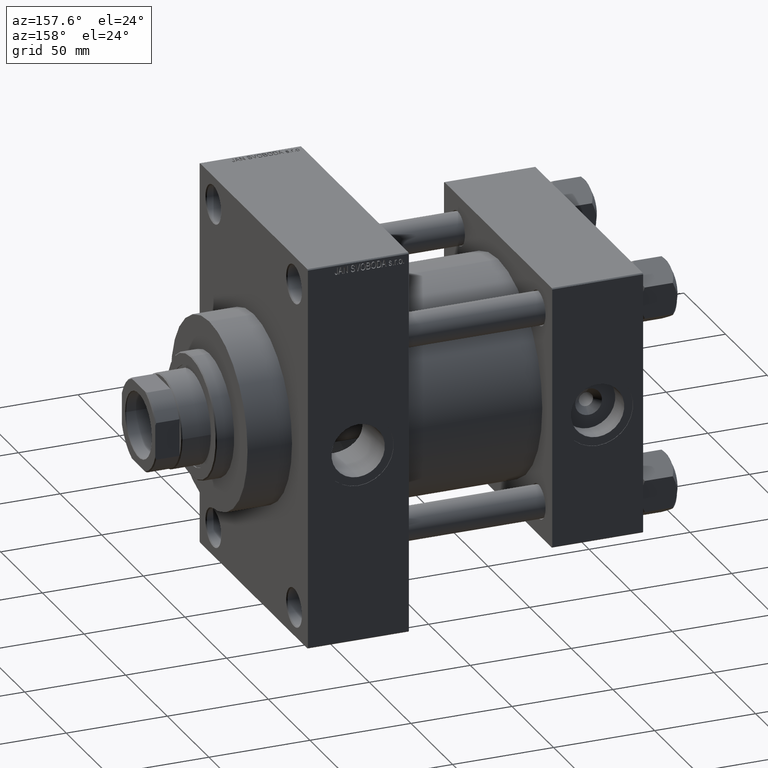
[diagram: clean part render]
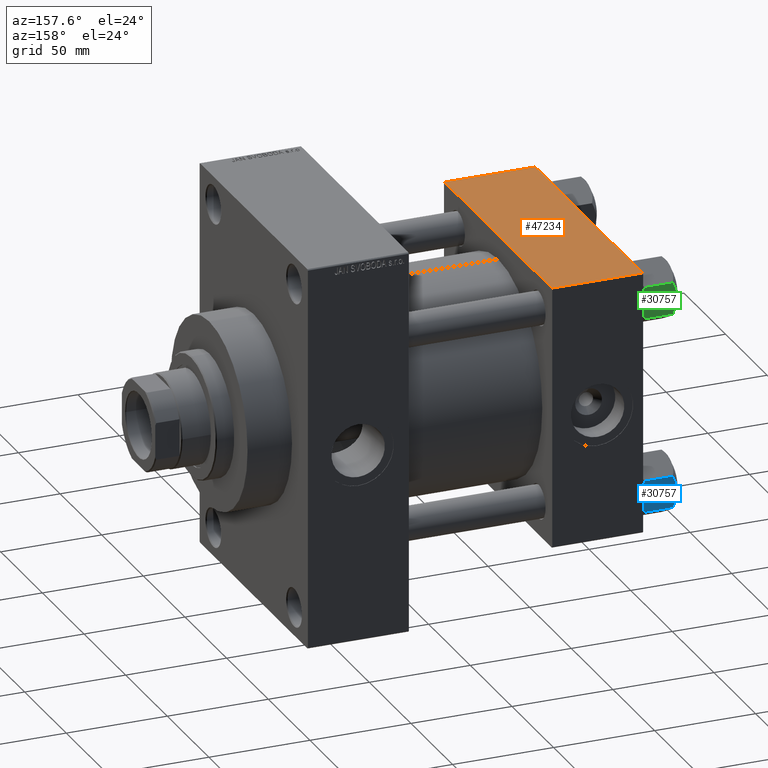
[diagram: same view with three faces highlighted in distinct colors, each labeled with its STEP entity id]
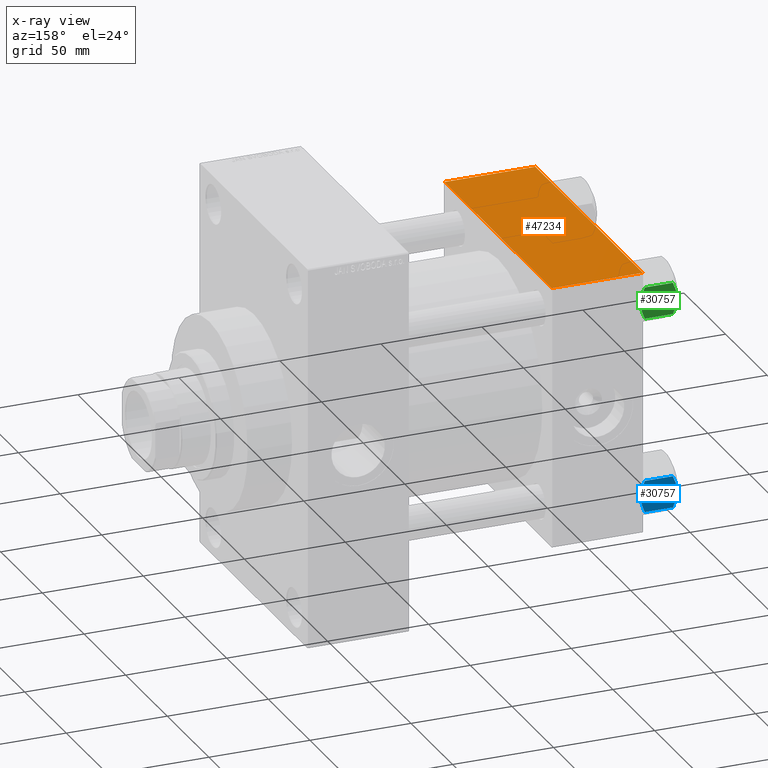
[diagram: x-ray of the same camera — body ghosted, the three highlighted faces saturated]
A machine part, auxiliary view with three faces highlighted in distinct colors.
The next image is the same camera in x-ray (body ghosted, the three faces saturated) — at least one of them is partly hidden behind the body in this view.
Their STEP definitions:

[orange] entity #47234 — the highlighted planar face has unit normal (0, 0, -1).
#588 = CARTESIAN_POINT ( 'NONE',  ( 0.000000000000000000, 65.00000000000000000, 65.00000000000001421 ) ) ;
#3921 = DIRECTION ( 'NONE',  ( 0.000000000000000000, 2.135044278125301096E-16, -1.000000000000000000 ) ) ;
#5358 = CARTESIAN_POINT ( 'NONE',  ( 45.00000000000000000, 64.49999999999997158, 65.00000000000001421 ) ) ;
#7292 = DIRECTION ( 'NONE',  ( 0.000000000000000000, 1.000000000000000000, 2.135044278125301096E-16 ) ) ;
#8332 = AXIS2_PLACEMENT_3D ( 'NONE', #17683, #3921, #7292 ) ;
#10085 = DIRECTION ( 'NONE',  ( -1.000000000000000000, 0.000000000000000000, 0.000000000000000000 ) ) ;
#13704 = CARTESIAN_POINT ( 'NONE',  ( 0.000000000000000000, 64.49999999999997158, 65.00000000000001421 ) ) ;
#14405 = LINE ( 'NONE', #13704, #31753 ) ;
#14411 = VERTEX_POINT ( 'NONE', #47492 ) ;
#14642 = EDGE_CURVE ( 'NONE', #18463, #23293, #14405, .T. ) ;
#17669 = VECTOR ( 'NONE', #30444, 1000.000000000000000 ) ;
#17683 = CARTESIAN_POINT ( 'NONE',  ( 45.00000000000000000, 65.00000000000000000, 65.00000000000001421 ) ) ;
#18463 = VERTEX_POINT ( 'NONE', #5358 ) ;
#18509 = EDGE_CURVE ( 'NONE', #18463, #24801, #22364, .T. ) ;
#18757 = DIRECTION ( 'NONE',  ( 0.000000000000000000, -1.000000000000000000, -2.135044278125300850E-16 ) ) ;
#21566 = LINE ( 'NONE', #588, #31323 ) ;
#22364 = LINE ( 'NONE', #29133, #22645 ) ;
#22645 = VECTOR ( 'NONE', #18757, 1000.000000000000000 ) ;
#23293 = VERTEX_POINT ( 'NONE', #31237 ) ;
#24801 = VERTEX_POINT ( 'NONE', #39789 ) ;
#24823 = ORIENTED_EDGE ( 'NONE', *, *, #35437, .T. ) ;
#25697 = ORIENTED_EDGE ( 'NONE', *, *, #14642, .T. ) ;
#29133 = CARTESIAN_POINT ( 'NONE',  ( 45.00000000000000000, 65.00000000000000000, 65.00000000000001421 ) ) ;
#30007 = DIRECTION ( 'NONE',  ( 0.000000000000000000, -1.000000000000000000, -2.135044278125300850E-16 ) ) ;
#30444 = DIRECTION ( 'NONE',  ( 1.000000000000000000, 0.000000000000000000, 0.000000000000000000 ) ) ;
#31177 = ORIENTED_EDGE ( 'NONE', *, *, #18509, .F. ) ;
#31237 = CARTESIAN_POINT ( 'NONE',  ( 0.000000000000000000, 64.49999999999997158, 65.00000000000001421 ) ) ;
#31323 = VECTOR ( 'NONE', #30007, 1000.000000000000000 ) ;
#31753 = VECTOR ( 'NONE', #10085, 1000.000000000000000 ) ;
#32614 = PLANE ( 'NONE',  #8332 ) ;
#35437 = EDGE_CURVE ( 'NONE', #14411, #24801, #41534, .T. ) ;
#36952 = FACE_OUTER_BOUND ( 'NONE', #46235, .T. ) ;
#37910 = CARTESIAN_POINT ( 'NONE',  ( 45.00000000000000000, -64.49999999999997158, 64.99999999999998579 ) ) ;
#38449 = ORIENTED_EDGE ( 'NONE', *, *, #44362, .T. ) ;
#39789 = CARTESIAN_POINT ( 'NONE',  ( 45.00000000000000000, -64.49999999999997158, 64.99999999999998579 ) ) ;
#41534 = LINE ( 'NONE', #37910, #17669 ) ;
#44362 = EDGE_CURVE ( 'NONE', #23293, #14411, #21566, .T. ) ;
#46235 = EDGE_LOOP ( 'NONE', ( #38449, #24823, #31177, #25697 ) ) ;
#47234 = ADVANCED_FACE ( 'NONE', ( #36952 ), #32614, .F. ) ;
#47492 = CARTESIAN_POINT ( 'NONE',  ( 0.000000000000000000, -64.49999999999997158, 64.99999999999998579 ) ) ;

[blue] entity #30757 — the highlighted planar face has unit normal (0, -1, -0).
#333 = PLANE ( 'NONE',  #27562 ) ;
#533 = ORIENTED_EDGE ( 'NONE', *, *, #27664, .F. ) ;
#612 = CARTESIAN_POINT ( 'NONE',  ( 1.663410456966173179, 13.52731680711293905, -17.90195050864300441 ) ) ;
#1725 = CARTESIAN_POINT ( 'NONE',  ( 4.557734399832410688, 13.52731680711294260, -17.26585298258849122 ) ) ;
#1936 = ORIENTED_EDGE ( 'NONE', *, *, #26518, .F. ) ;
#2870 = DIRECTION ( 'NONE',  ( -1.000000000000000000, 0.000000000000000000, 0.000000000000000000 ) ) ;
#3055 = CARTESIAN_POINT ( 'NONE',  ( -7.809999999999997833, 13.52731680711293905, -1.999999999999998224 ) ) ;
#3080 = CARTESIAN_POINT ( 'NONE',  ( -7.622943475354646559, 13.52731680711293905, -2.000000000000000000 ) ) ;
#4214 = CARTESIAN_POINT ( 'NONE',  ( 6.422751913021825132, 13.52731680711294260, -16.56349088907410660 ) ) ;
#4659 = VERTEX_POINT ( 'NONE', #11402 ) ;
#4989 = CARTESIAN_POINT ( 'NONE',  ( 7.810000000000001386, 13.52731680711293905, -18.00000000000000000 ) ) ;
#5309 = DIRECTION ( 'NONE',  ( 1.000000000000000000, 0.000000000000000000, 0.000000000000000000 ) ) ;
#6089 = ORIENTED_EDGE ( 'NONE', *, *, #39892, .F. ) ;
#6622 = CARTESIAN_POINT ( 'NONE',  ( 0.000000000000000000, 13.52731680711293905, 0.000000000000000000 ) ) ;
#6892 = ORIENTED_EDGE ( 'NONE', *, *, #12689, .F. ) ;
#7987 = CARTESIAN_POINT ( 'NONE',  ( -4.553769687922306630, 13.52731680711293905, -17.26727080048548046 ) ) ;
#8066 = VECTOR ( 'NONE', #5309, 1000.000000000000000 ) ;
#8847 = DIRECTION ( 'NONE',  ( 1.000000000000000000, 0.000000000000000000, 0.000000000000000000 ) ) ;
#9332 = DIRECTION ( 'NONE',  ( -0.000000000000000000, -0.000000000000000000, 1.000000000000000000 ) ) ;
#9523 = EDGE_CURVE ( 'NONE', #39921, #37465, #16804, .T. ) ;
#10079 = CARTESIAN_POINT ( 'NONE',  ( -1.333889873825133243, 13.52731680711293727, -0.06156641003439514842 ) ) ;
#11402 = CARTESIAN_POINT ( 'NONE',  ( -7.622943475354646559, 13.52731680711293905, -2.000000000000000000 ) ) ;
#11681 = CARTESIAN_POINT ( 'NONE',  ( 4.553769687922306630, 13.52731680711293905, -0.7327291995145164272 ) ) ;
#12126 = CARTESIAN_POINT ( 'NONE',  ( 0.000000000000000000, 13.52731680711293905, -18.00000000000000000 ) ) ;
#12689 = EDGE_CURVE ( 'NONE', #13237, #32753, #14627, .T. ) ;
#13237 = VERTEX_POINT ( 'NONE', #21397 ) ;
#13698 = CARTESIAN_POINT ( 'NONE',  ( -0.6693083573771212436, 13.52731680711293905, -0.01249333081108270314 ) ) ;
#14171 = VECTOR ( 'NONE', #40048, 1000.000000000000000 ) ;
#14627 = B_SPLINE_CURVE_WITH_KNOTS ( 'NONE', 3,
 ( #19564, #33551, #15223, #27270, #7987, #41742, #15462, #37409 ),
 .UNSPECIFIED., .F., .F.,
 ( 4, 2, 2, 4 ),
 ( 0.01980594295952728401, 0.02179054093496182731, 0.02377513891039636715, 0.02774433486126545029 ),
 .UNSPECIFIED. ) ;
#15038 = CARTESIAN_POINT ( 'NONE',  ( -7.809999999999997833, 13.52731680711293905, -18.00000000000000000 ) ) ;
#15223 = CARTESIAN_POINT ( 'NONE',  ( -6.427364677720471597, 13.52731680711293905, -16.56149306284486400 ) ) ;
#15429 = VERTEX_POINT ( 'NONE', #6622 ) ;
#15462 = CARTESIAN_POINT ( 'NONE',  ( -1.335584685993417287, 13.52731680711294082, -18.00000000000000000 ) ) ;
#16235 = B_SPLINE_CURVE_WITH_KNOTS ( 'NONE', 3,
 ( #18696, #45844, #33397, #30028, #612, #37256, #26411, #1725, #41116, #4214, #22772, #27539 ),
 .UNSPECIFIED., .F., .F.,
 ( 4, 2, 2, 2, 2, 4 ),
 ( 0.02774433486126545029, 0.02873404020403548878, 0.02972374554680552727, 0.03170315623234559732, 0.03368256691788567431, 0.03566197760342575129 ),
 .UNSPECIFIED. ) ;
#16537 = EDGE_CURVE ( 'NONE', #46916, #15429, #35623, .T. ) ;
#16643 = CARTESIAN_POINT ( 'NONE',  ( -7.809999999999997833, 13.52731680711293905, -16.00000000000000000 ) ) ;
#16804 = LINE ( 'NONE', #4989, #20170 ) ;
#18028 = ORIENTED_EDGE ( 'NONE', *, *, #39458, .F. ) ;
#18662 = FACE_OUTER_BOUND ( 'NONE', #47150, .T. ) ;
#18678 = CARTESIAN_POINT ( 'NONE',  ( 1.335584685993417065, 13.52731680711294260, -9.486769009248166263E-17 ) ) ;
#18696 = CARTESIAN_POINT ( 'NONE',  ( 0.000000000000000000, 13.52731680711293905, -18.00000000000000000 ) ) ;
#18913 = CARTESIAN_POINT ( 'NONE',  ( 0.000000000000000000, 13.52731680711293905, 0.000000000000000000 ) ) ;
#19564 = CARTESIAN_POINT ( 'NONE',  ( -7.622943475354646559, 13.52731680711293905, -16.00000000000000000 ) ) ;
#19712 = EDGE_CURVE ( 'NONE', #32838, #13237, #27969, .T. ) ;
#19714 = CARTESIAN_POINT ( 'NONE',  ( -7.809999999999997833, 13.52731680711293905, -16.00000000000000000 ) ) ;
#20170 = VECTOR ( 'NONE', #9332, 1000.000000000000000 ) ;
#21237 = CARTESIAN_POINT ( 'NONE',  ( -7.809999999999997833, 13.52731680711293905, -1.999999999999998224 ) ) ;
#21318 = B_SPLINE_CURVE_WITH_KNOTS ( 'NONE', 3,
 ( #32018, #46727, #13698, #10079, #38313, #34696, #47675, #39972, #43826, #25502, #40202, #3080 ),
 .UNSPECIFIED., .F., .F.,
 ( 4, 2, 2, 2, 2, 4 ),
 ( 0.02774433486126545376, 0.02873404020403549225, 0.02972374554680553074, 0.03170315623234560426, 0.03368256691788568125, 0.03566197760342575823 ),
 .UNSPECIFIED. ) ;
#21397 = CARTESIAN_POINT ( 'NONE',  ( -7.622943475354646559, 13.52731680711293905, -16.00000000000000000 ) ) ;
#22542 = VERTEX_POINT ( 'NONE', #39177 ) ;
#22772 = CARTESIAN_POINT ( 'NONE',  ( 7.030203932307582448, 13.52731680711294082, -16.29099812210859710 ) ) ;
#23363 = VECTOR ( 'NONE', #8847, 1000.000000000000000 ) ;
#23432 = VECTOR ( 'NONE', #2870, 1000.000000000000000 ) ;
#24255 = CARTESIAN_POINT ( 'NONE',  ( -7.809999999999997833, 13.52731680711293905, -18.00000000000000000 ) ) ;
#25208 = CARTESIAN_POINT ( 'NONE',  ( 7.622943475354646559, 13.52731680711293905, -2.000000000000000000 ) ) ;
#25502 = CARTESIAN_POINT ( 'NONE',  ( -6.422751913021825132, 13.52731680711294260, -1.436509110925897614 ) ) ;
#25576 = LINE ( 'NONE', #21237, #14171 ) ;
#25808 = LINE ( 'NONE', #19714, #23363 ) ;
#26411 = CARTESIAN_POINT ( 'NONE',  ( 3.287826776903149728, 13.52731680711294082, -17.61954155462466431 ) ) ;
#26518 = EDGE_CURVE ( 'NONE', #32753, #22542, #16235, .T. ) ;
#26610 = ORIENTED_EDGE ( 'NONE', *, *, #16537, .F. ) ;
#26612 = ORIENTED_EDGE ( 'NONE', *, *, #37464, .F. ) ;
#27074 = CARTESIAN_POINT ( 'NONE',  ( -7.809999999999997833, 13.52731680711293905, -16.00000000000000000 ) ) ;
#27270 = CARTESIAN_POINT ( 'NONE',  ( -5.189513245496329752, 13.52731680711293727, -17.04988915682674033 ) ) ;
#27539 = CARTESIAN_POINT ( 'NONE',  ( 7.622943475354646559, 13.52731680711293905, -16.00000000000000000 ) ) ;
#27562 = AXIS2_PLACEMENT_3D ( 'NONE', #15038, #29755, #44456 ) ;
#27664 = EDGE_CURVE ( 'NONE', #15429, #4659, #21318, .T. ) ;
#27969 = LINE ( 'NONE', #16643, #8066 ) ;
#29048 = CARTESIAN_POINT ( 'NONE',  ( 2.638177715023107162, 13.52731680711293905, -0.2001540676698846388 ) ) ;
#29755 = DIRECTION ( 'NONE',  ( 0.000000000000000000, -1.000000000000000000, 0.000000000000000000 ) ) ;
#30028 = CARTESIAN_POINT ( 'NONE',  ( 1.333889873825132355, 13.52731680711293727, -17.93843358996560511 ) ) ;
#30757 = ADVANCED_FACE ( 'NONE', ( #18662 ), #333, .F. ) ;
#32018 = CARTESIAN_POINT ( 'NONE',  ( 0.000000000000000000, 13.52731680711293905, 0.000000000000000000 ) ) ;
#32208 = LINE ( 'NONE', #24255, #36150 ) ;
#32292 = LINE ( 'NONE', #47468, #23432 ) ;
#32753 = VERTEX_POINT ( 'NONE', #12126 ) ;
#32838 = VERTEX_POINT ( 'NONE', #27074 ) ;
#33397 = CARTESIAN_POINT ( 'NONE',  ( 0.6693083573771192452, 13.52731680711293905, -17.98750666918892094 ) ) ;
#33551 = CARTESIAN_POINT ( 'NONE',  ( -7.030888348548061551, 13.52731680711293905, -16.29066211644969897 ) ) ;
#34696 = CARTESIAN_POINT ( 'NONE',  ( -2.644243758052991389, 13.52731680711294260, -0.2408281198023992098 ) ) ;
#34893 = EDGE_CURVE ( 'NONE', #32838, #41689, #32208, .T. ) ;
#35623 = B_SPLINE_CURVE_WITH_KNOTS ( 'NONE', 3,
 ( #43759, #44708, #40623, #47364, #11681, #29048, #18678, #18913 ),
 .UNSPECIFIED., .F., .F.,
 ( 4, 2, 2, 4 ),
 ( 0.01980594295952728401, 0.02179054093496182731, 0.02377513891039636715, 0.02774433486126545376 ),
 .UNSPECIFIED. ) ;
#36150 = VECTOR ( 'NONE', #38736, 1000.000000000000000 ) ;
#37256 = CARTESIAN_POINT ( 'NONE',  ( 2.644243758052989612, 13.52731680711294260, -17.75917188019759863 ) ) ;
#37409 = CARTESIAN_POINT ( 'NONE',  ( 0.000000000000000000, 13.52731680711293905, -18.00000000000000000 ) ) ;
#37464 = EDGE_CURVE ( 'NONE', #22542, #39921, #25808, .T. ) ;
#37465 = VERTEX_POINT ( 'NONE', #40519 ) ;
#37626 = CARTESIAN_POINT ( 'NONE',  ( 7.810000000000001386, 13.52731680711293905, -16.00000000000000000 ) ) ;
#38313 = CARTESIAN_POINT ( 'NONE',  ( -1.663410456966174511, 13.52731680711293905, -0.09804949135699092544 ) ) ;
#38446 = ORIENTED_EDGE ( 'NONE', *, *, #34893, .T. ) ;
#38736 = DIRECTION ( 'NONE',  ( -0.000000000000000000, -0.000000000000000000, 1.000000000000000000 ) ) ;
#39177 = CARTESIAN_POINT ( 'NONE',  ( 7.622943475354646559, 13.52731680711293905, -16.00000000000000000 ) ) ;
#39458 = EDGE_CURVE ( 'NONE', #37465, #46916, #32292, .T. ) ;
#39892 = EDGE_CURVE ( 'NONE', #4659, #41689, #25576, .T. ) ;
#39921 = VERTEX_POINT ( 'NONE', #37626 ) ;
#39972 = CARTESIAN_POINT ( 'NONE',  ( -4.557734399832415129, 13.52731680711294260, -0.7341470174115148906 ) ) ;
#40048 = DIRECTION ( 'NONE',  ( -1.000000000000000000, 0.000000000000000000, 0.000000000000000000 ) ) ;
#40202 = CARTESIAN_POINT ( 'NONE',  ( -7.030203932307585113, 13.52731680711294082, -1.709001877891394239 ) ) ;
#40519 = CARTESIAN_POINT ( 'NONE',  ( 7.810000000000001386, 13.52731680711293905, -1.999999999999998224 ) ) ;
#40623 = CARTESIAN_POINT ( 'NONE',  ( 6.427364677720476926, 13.52731680711294082, -1.438506937155140664 ) ) ;
#41116 = CARTESIAN_POINT ( 'NONE',  ( 5.184073258379402027, 13.52731680711294082, -17.05185620934991775 ) ) ;
#41689 = VERTEX_POINT ( 'NONE', #3055 ) ;
#41742 = CARTESIAN_POINT ( 'NONE',  ( -2.638177715023110714, 13.52731680711294260, -17.79984593233011481 ) ) ;
#43359 = ORIENTED_EDGE ( 'NONE', *, *, #9523, .F. ) ;
#43759 = CARTESIAN_POINT ( 'NONE',  ( 7.622943475354646559, 13.52731680711293905, -2.000000000000000000 ) ) ;
#43826 = CARTESIAN_POINT ( 'NONE',  ( -5.184073258379404692, 13.52731680711294082, -0.9481437906500841395 ) ) ;
#44456 = DIRECTION ( 'NONE',  ( 0.000000000000000000, -0.000000000000000000, -1.000000000000000000 ) ) ;
#44708 = CARTESIAN_POINT ( 'NONE',  ( 7.030888348548067768, 13.52731680711294260, -1.709337883550299253 ) ) ;
#45844 = CARTESIAN_POINT ( 'NONE',  ( 0.3330234424833813378, 13.52731680711293905, -18.00000000000000355 ) ) ;
#46727 = CARTESIAN_POINT ( 'NONE',  ( -0.3330234424833830031, 13.52731680711293905, 5.717472393966525748E-18 ) ) ;
#46916 = VERTEX_POINT ( 'NONE', #25208 ) ;
#47150 = EDGE_LOOP ( 'NONE', ( #47592, #38446, #6089, #533, #26610, #18028, #43359, #26612, #1936, #6892 ) ) ;
#47364 = CARTESIAN_POINT ( 'NONE',  ( 5.189513245496330640, 13.52731680711293727, -0.9501108431732594450 ) ) ;
#47468 = CARTESIAN_POINT ( 'NONE',  ( -7.809999999999997833, 13.52731680711293905, -1.999999999999998224 ) ) ;
#47592 = ORIENTED_EDGE ( 'NONE', *, *, #19712, .F. ) ;
#47675 = CARTESIAN_POINT ( 'NONE',  ( -3.287826776903153281, 13.52731680711294082, -0.3804584453753372952 ) ) ;

[green] entity #30757 — the highlighted planar face has unit normal (0, -1, 0).
#333 = PLANE ( 'NONE',  #27562 ) ;
#533 = ORIENTED_EDGE ( 'NONE', *, *, #27664, .F. ) ;
#612 = CARTESIAN_POINT ( 'NONE',  ( 1.663410456966173179, 13.52731680711293905, -17.90195050864300441 ) ) ;
#1725 = CARTESIAN_POINT ( 'NONE',  ( 4.557734399832410688, 13.52731680711294260, -17.26585298258849122 ) ) ;
#1936 = ORIENTED_EDGE ( 'NONE', *, *, #26518, .F. ) ;
#2870 = DIRECTION ( 'NONE',  ( -1.000000000000000000, 0.000000000000000000, 0.000000000000000000 ) ) ;
#3055 = CARTESIAN_POINT ( 'NONE',  ( -7.809999999999997833, 13.52731680711293905, -1.999999999999998224 ) ) ;
#3080 = CARTESIAN_POINT ( 'NONE',  ( -7.622943475354646559, 13.52731680711293905, -2.000000000000000000 ) ) ;
#4214 = CARTESIAN_POINT ( 'NONE',  ( 6.422751913021825132, 13.52731680711294260, -16.56349088907410660 ) ) ;
#4659 = VERTEX_POINT ( 'NONE', #11402 ) ;
#4989 = CARTESIAN_POINT ( 'NONE',  ( 7.810000000000001386, 13.52731680711293905, -18.00000000000000000 ) ) ;
#5309 = DIRECTION ( 'NONE',  ( 1.000000000000000000, 0.000000000000000000, 0.000000000000000000 ) ) ;
#6089 = ORIENTED_EDGE ( 'NONE', *, *, #39892, .F. ) ;
#6622 = CARTESIAN_POINT ( 'NONE',  ( 0.000000000000000000, 13.52731680711293905, 0.000000000000000000 ) ) ;
#6892 = ORIENTED_EDGE ( 'NONE', *, *, #12689, .F. ) ;
#7987 = CARTESIAN_POINT ( 'NONE',  ( -4.553769687922306630, 13.52731680711293905, -17.26727080048548046 ) ) ;
#8066 = VECTOR ( 'NONE', #5309, 1000.000000000000000 ) ;
#8847 = DIRECTION ( 'NONE',  ( 1.000000000000000000, 0.000000000000000000, 0.000000000000000000 ) ) ;
#9332 = DIRECTION ( 'NONE',  ( -0.000000000000000000, -0.000000000000000000, 1.000000000000000000 ) ) ;
#9523 = EDGE_CURVE ( 'NONE', #39921, #37465, #16804, .T. ) ;
#10079 = CARTESIAN_POINT ( 'NONE',  ( -1.333889873825133243, 13.52731680711293727, -0.06156641003439514842 ) ) ;
#11402 = CARTESIAN_POINT ( 'NONE',  ( -7.622943475354646559, 13.52731680711293905, -2.000000000000000000 ) ) ;
#11681 = CARTESIAN_POINT ( 'NONE',  ( 4.553769687922306630, 13.52731680711293905, -0.7327291995145164272 ) ) ;
#12126 = CARTESIAN_POINT ( 'NONE',  ( 0.000000000000000000, 13.52731680711293905, -18.00000000000000000 ) ) ;
#12689 = EDGE_CURVE ( 'NONE', #13237, #32753, #14627, .T. ) ;
#13237 = VERTEX_POINT ( 'NONE', #21397 ) ;
#13698 = CARTESIAN_POINT ( 'NONE',  ( -0.6693083573771212436, 13.52731680711293905, -0.01249333081108270314 ) ) ;
#14171 = VECTOR ( 'NONE', #40048, 1000.000000000000000 ) ;
#14627 = B_SPLINE_CURVE_WITH_KNOTS ( 'NONE', 3,
 ( #19564, #33551, #15223, #27270, #7987, #41742, #15462, #37409 ),
 .UNSPECIFIED., .F., .F.,
 ( 4, 2, 2, 4 ),
 ( 0.01980594295952728401, 0.02179054093496182731, 0.02377513891039636715, 0.02774433486126545029 ),
 .UNSPECIFIED. ) ;
#15038 = CARTESIAN_POINT ( 'NONE',  ( -7.809999999999997833, 13.52731680711293905, -18.00000000000000000 ) ) ;
#15223 = CARTESIAN_POINT ( 'NONE',  ( -6.427364677720471597, 13.52731680711293905, -16.56149306284486400 ) ) ;
#15429 = VERTEX_POINT ( 'NONE', #6622 ) ;
#15462 = CARTESIAN_POINT ( 'NONE',  ( -1.335584685993417287, 13.52731680711294082, -18.00000000000000000 ) ) ;
#16235 = B_SPLINE_CURVE_WITH_KNOTS ( 'NONE', 3,
 ( #18696, #45844, #33397, #30028, #612, #37256, #26411, #1725, #41116, #4214, #22772, #27539 ),
 .UNSPECIFIED., .F., .F.,
 ( 4, 2, 2, 2, 2, 4 ),
 ( 0.02774433486126545029, 0.02873404020403548878, 0.02972374554680552727, 0.03170315623234559732, 0.03368256691788567431, 0.03566197760342575129 ),
 .UNSPECIFIED. ) ;
#16537 = EDGE_CURVE ( 'NONE', #46916, #15429, #35623, .T. ) ;
#16643 = CARTESIAN_POINT ( 'NONE',  ( -7.809999999999997833, 13.52731680711293905, -16.00000000000000000 ) ) ;
#16804 = LINE ( 'NONE', #4989, #20170 ) ;
#18028 = ORIENTED_EDGE ( 'NONE', *, *, #39458, .F. ) ;
#18662 = FACE_OUTER_BOUND ( 'NONE', #47150, .T. ) ;
#18678 = CARTESIAN_POINT ( 'NONE',  ( 1.335584685993417065, 13.52731680711294260, -9.486769009248166263E-17 ) ) ;
#18696 = CARTESIAN_POINT ( 'NONE',  ( 0.000000000000000000, 13.52731680711293905, -18.00000000000000000 ) ) ;
#18913 = CARTESIAN_POINT ( 'NONE',  ( 0.000000000000000000, 13.52731680711293905, 0.000000000000000000 ) ) ;
#19564 = CARTESIAN_POINT ( 'NONE',  ( -7.622943475354646559, 13.52731680711293905, -16.00000000000000000 ) ) ;
#19712 = EDGE_CURVE ( 'NONE', #32838, #13237, #27969, .T. ) ;
#19714 = CARTESIAN_POINT ( 'NONE',  ( -7.809999999999997833, 13.52731680711293905, -16.00000000000000000 ) ) ;
#20170 = VECTOR ( 'NONE', #9332, 1000.000000000000000 ) ;
#21237 = CARTESIAN_POINT ( 'NONE',  ( -7.809999999999997833, 13.52731680711293905, -1.999999999999998224 ) ) ;
#21318 = B_SPLINE_CURVE_WITH_KNOTS ( 'NONE', 3,
 ( #32018, #46727, #13698, #10079, #38313, #34696, #47675, #39972, #43826, #25502, #40202, #3080 ),
 .UNSPECIFIED., .F., .F.,
 ( 4, 2, 2, 2, 2, 4 ),
 ( 0.02774433486126545376, 0.02873404020403549225, 0.02972374554680553074, 0.03170315623234560426, 0.03368256691788568125, 0.03566197760342575823 ),
 .UNSPECIFIED. ) ;
#21397 = CARTESIAN_POINT ( 'NONE',  ( -7.622943475354646559, 13.52731680711293905, -16.00000000000000000 ) ) ;
#22542 = VERTEX_POINT ( 'NONE', #39177 ) ;
#22772 = CARTESIAN_POINT ( 'NONE',  ( 7.030203932307582448, 13.52731680711294082, -16.29099812210859710 ) ) ;
#23363 = VECTOR ( 'NONE', #8847, 1000.000000000000000 ) ;
#23432 = VECTOR ( 'NONE', #2870, 1000.000000000000000 ) ;
#24255 = CARTESIAN_POINT ( 'NONE',  ( -7.809999999999997833, 13.52731680711293905, -18.00000000000000000 ) ) ;
#25208 = CARTESIAN_POINT ( 'NONE',  ( 7.622943475354646559, 13.52731680711293905, -2.000000000000000000 ) ) ;
#25502 = CARTESIAN_POINT ( 'NONE',  ( -6.422751913021825132, 13.52731680711294260, -1.436509110925897614 ) ) ;
#25576 = LINE ( 'NONE', #21237, #14171 ) ;
#25808 = LINE ( 'NONE', #19714, #23363 ) ;
#26411 = CARTESIAN_POINT ( 'NONE',  ( 3.287826776903149728, 13.52731680711294082, -17.61954155462466431 ) ) ;
#26518 = EDGE_CURVE ( 'NONE', #32753, #22542, #16235, .T. ) ;
#26610 = ORIENTED_EDGE ( 'NONE', *, *, #16537, .F. ) ;
#26612 = ORIENTED_EDGE ( 'NONE', *, *, #37464, .F. ) ;
#27074 = CARTESIAN_POINT ( 'NONE',  ( -7.809999999999997833, 13.52731680711293905, -16.00000000000000000 ) ) ;
#27270 = CARTESIAN_POINT ( 'NONE',  ( -5.189513245496329752, 13.52731680711293727, -17.04988915682674033 ) ) ;
#27539 = CARTESIAN_POINT ( 'NONE',  ( 7.622943475354646559, 13.52731680711293905, -16.00000000000000000 ) ) ;
#27562 = AXIS2_PLACEMENT_3D ( 'NONE', #15038, #29755, #44456 ) ;
#27664 = EDGE_CURVE ( 'NONE', #15429, #4659, #21318, .T. ) ;
#27969 = LINE ( 'NONE', #16643, #8066 ) ;
#29048 = CARTESIAN_POINT ( 'NONE',  ( 2.638177715023107162, 13.52731680711293905, -0.2001540676698846388 ) ) ;
#29755 = DIRECTION ( 'NONE',  ( 0.000000000000000000, -1.000000000000000000, 0.000000000000000000 ) ) ;
#30028 = CARTESIAN_POINT ( 'NONE',  ( 1.333889873825132355, 13.52731680711293727, -17.93843358996560511 ) ) ;
#30757 = ADVANCED_FACE ( 'NONE', ( #18662 ), #333, .F. ) ;
#32018 = CARTESIAN_POINT ( 'NONE',  ( 0.000000000000000000, 13.52731680711293905, 0.000000000000000000 ) ) ;
#32208 = LINE ( 'NONE', #24255, #36150 ) ;
#32292 = LINE ( 'NONE', #47468, #23432 ) ;
#32753 = VERTEX_POINT ( 'NONE', #12126 ) ;
#32838 = VERTEX_POINT ( 'NONE', #27074 ) ;
#33397 = CARTESIAN_POINT ( 'NONE',  ( 0.6693083573771192452, 13.52731680711293905, -17.98750666918892094 ) ) ;
#33551 = CARTESIAN_POINT ( 'NONE',  ( -7.030888348548061551, 13.52731680711293905, -16.29066211644969897 ) ) ;
#34696 = CARTESIAN_POINT ( 'NONE',  ( -2.644243758052991389, 13.52731680711294260, -0.2408281198023992098 ) ) ;
#34893 = EDGE_CURVE ( 'NONE', #32838, #41689, #32208, .T. ) ;
#35623 = B_SPLINE_CURVE_WITH_KNOTS ( 'NONE', 3,
 ( #43759, #44708, #40623, #47364, #11681, #29048, #18678, #18913 ),
 .UNSPECIFIED., .F., .F.,
 ( 4, 2, 2, 4 ),
 ( 0.01980594295952728401, 0.02179054093496182731, 0.02377513891039636715, 0.02774433486126545376 ),
 .UNSPECIFIED. ) ;
#36150 = VECTOR ( 'NONE', #38736, 1000.000000000000000 ) ;
#37256 = CARTESIAN_POINT ( 'NONE',  ( 2.644243758052989612, 13.52731680711294260, -17.75917188019759863 ) ) ;
#37409 = CARTESIAN_POINT ( 'NONE',  ( 0.000000000000000000, 13.52731680711293905, -18.00000000000000000 ) ) ;
#37464 = EDGE_CURVE ( 'NONE', #22542, #39921, #25808, .T. ) ;
#37465 = VERTEX_POINT ( 'NONE', #40519 ) ;
#37626 = CARTESIAN_POINT ( 'NONE',  ( 7.810000000000001386, 13.52731680711293905, -16.00000000000000000 ) ) ;
#38313 = CARTESIAN_POINT ( 'NONE',  ( -1.663410456966174511, 13.52731680711293905, -0.09804949135699092544 ) ) ;
#38446 = ORIENTED_EDGE ( 'NONE', *, *, #34893, .T. ) ;
#38736 = DIRECTION ( 'NONE',  ( -0.000000000000000000, -0.000000000000000000, 1.000000000000000000 ) ) ;
#39177 = CARTESIAN_POINT ( 'NONE',  ( 7.622943475354646559, 13.52731680711293905, -16.00000000000000000 ) ) ;
#39458 = EDGE_CURVE ( 'NONE', #37465, #46916, #32292, .T. ) ;
#39892 = EDGE_CURVE ( 'NONE', #4659, #41689, #25576, .T. ) ;
#39921 = VERTEX_POINT ( 'NONE', #37626 ) ;
#39972 = CARTESIAN_POINT ( 'NONE',  ( -4.557734399832415129, 13.52731680711294260, -0.7341470174115148906 ) ) ;
#40048 = DIRECTION ( 'NONE',  ( -1.000000000000000000, 0.000000000000000000, 0.000000000000000000 ) ) ;
#40202 = CARTESIAN_POINT ( 'NONE',  ( -7.030203932307585113, 13.52731680711294082, -1.709001877891394239 ) ) ;
#40519 = CARTESIAN_POINT ( 'NONE',  ( 7.810000000000001386, 13.52731680711293905, -1.999999999999998224 ) ) ;
#40623 = CARTESIAN_POINT ( 'NONE',  ( 6.427364677720476926, 13.52731680711294082, -1.438506937155140664 ) ) ;
#41116 = CARTESIAN_POINT ( 'NONE',  ( 5.184073258379402027, 13.52731680711294082, -17.05185620934991775 ) ) ;
#41689 = VERTEX_POINT ( 'NONE', #3055 ) ;
#41742 = CARTESIAN_POINT ( 'NONE',  ( -2.638177715023110714, 13.52731680711294260, -17.79984593233011481 ) ) ;
#43359 = ORIENTED_EDGE ( 'NONE', *, *, #9523, .F. ) ;
#43759 = CARTESIAN_POINT ( 'NONE',  ( 7.622943475354646559, 13.52731680711293905, -2.000000000000000000 ) ) ;
#43826 = CARTESIAN_POINT ( 'NONE',  ( -5.184073258379404692, 13.52731680711294082, -0.9481437906500841395 ) ) ;
#44456 = DIRECTION ( 'NONE',  ( 0.000000000000000000, -0.000000000000000000, -1.000000000000000000 ) ) ;
#44708 = CARTESIAN_POINT ( 'NONE',  ( 7.030888348548067768, 13.52731680711294260, -1.709337883550299253 ) ) ;
#45844 = CARTESIAN_POINT ( 'NONE',  ( 0.3330234424833813378, 13.52731680711293905, -18.00000000000000355 ) ) ;
#46727 = CARTESIAN_POINT ( 'NONE',  ( -0.3330234424833830031, 13.52731680711293905, 5.717472393966525748E-18 ) ) ;
#46916 = VERTEX_POINT ( 'NONE', #25208 ) ;
#47150 = EDGE_LOOP ( 'NONE', ( #47592, #38446, #6089, #533, #26610, #18028, #43359, #26612, #1936, #6892 ) ) ;
#47364 = CARTESIAN_POINT ( 'NONE',  ( 5.189513245496330640, 13.52731680711293727, -0.9501108431732594450 ) ) ;
#47468 = CARTESIAN_POINT ( 'NONE',  ( -7.809999999999997833, 13.52731680711293905, -1.999999999999998224 ) ) ;
#47592 = ORIENTED_EDGE ( 'NONE', *, *, #19712, .F. ) ;
#47675 = CARTESIAN_POINT ( 'NONE',  ( -3.287826776903153281, 13.52731680711294082, -0.3804584453753372952 ) ) ;